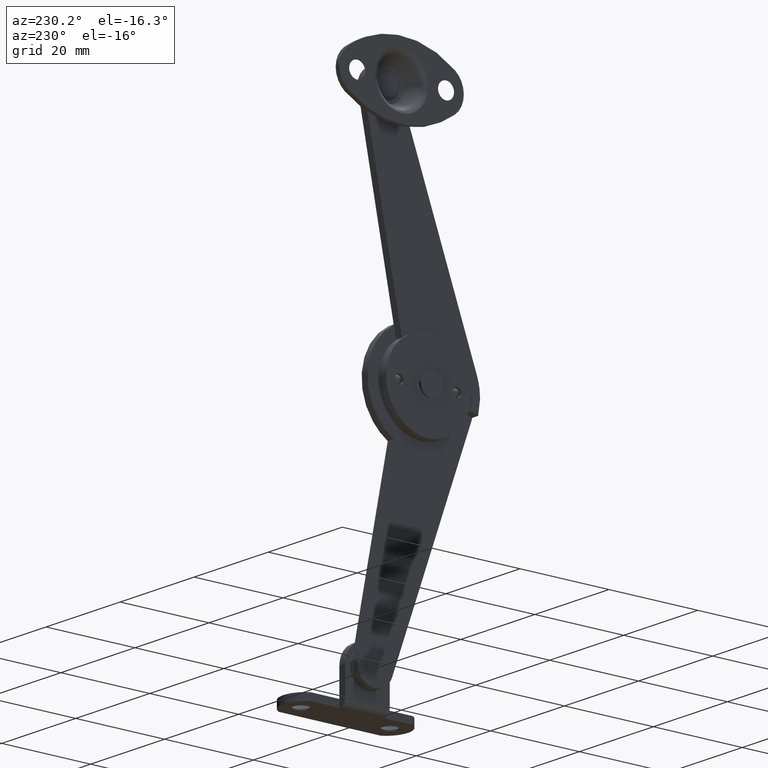
[diagram: clean part render]
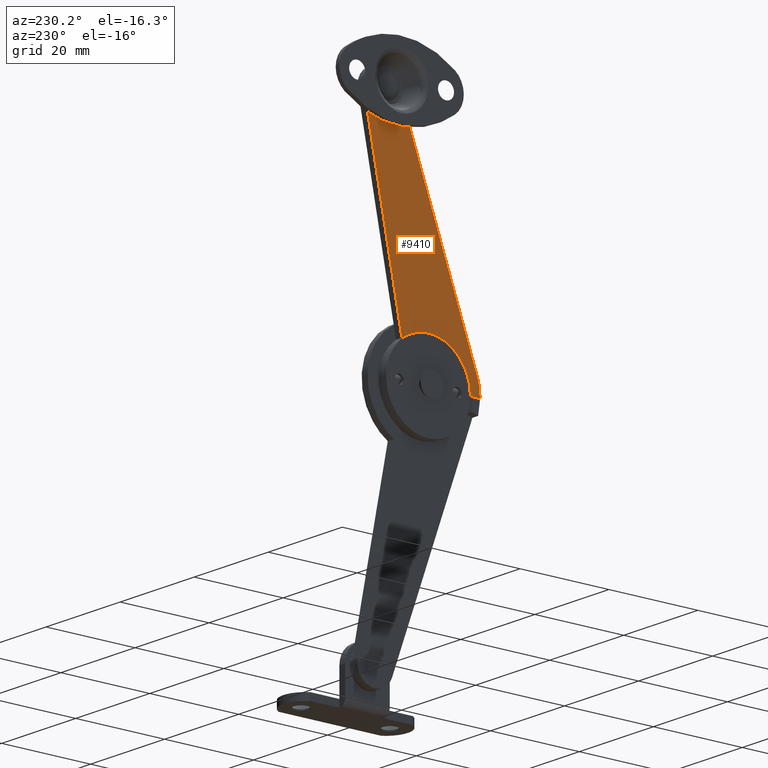
[diagram: same view with one face highlighted and labeled with its STEP entity id]
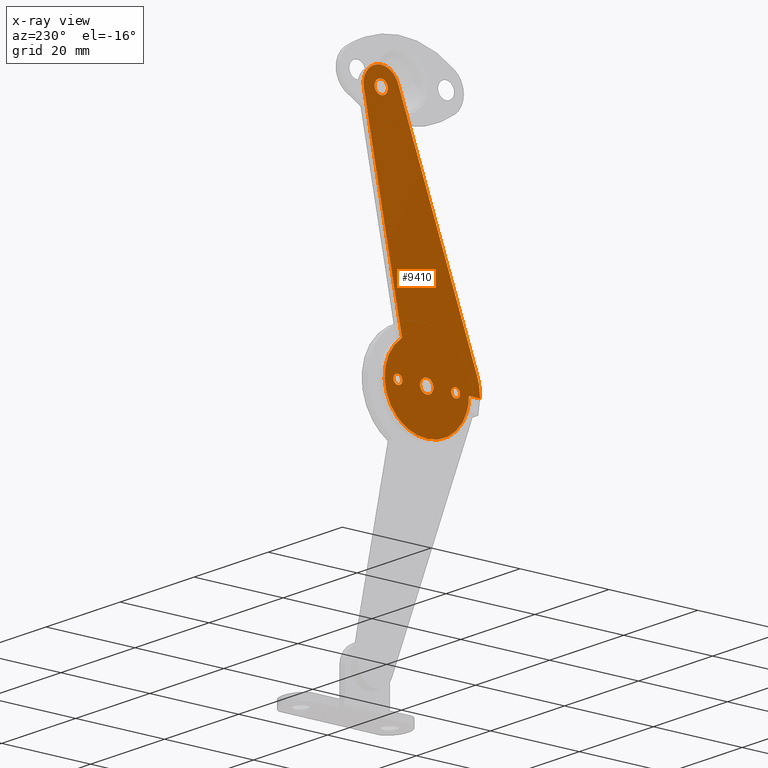
[diagram: x-ray of the same camera — body ghosted, the highlighted face saturated]
A machine part, auxiliary view. The second image highlights one B-rep face of the part: STEP entity #9410.
The next image is the same camera in x-ray: the body ghosted, the highlighted face saturated — about 0% of this face is hidden behind the body in this view.
In plain terms, the highlighted face is a freeform B-spline surface patch.
Its self-contained STEP definition (entity closure, byte-faithful):
#8440=CARTESIAN_POINT('',(5.500000000000000,-16.009696018246672,-0.675590308818836));
#8441=VERTEX_POINT('',#8440);
#8447=CARTESIAN_POINT('',(5.500000000000000,-16.746973262321148,-1.000000000000002));
#8448=VERTEX_POINT('',#8447);
#8449=CARTESIAN_POINT('',(5.500000000000000,-16.009696018246672,-0.675590308818836));
#8450=CARTESIAN_POINT('',(5.500000000000002,-16.079677108283139,-0.752024844862061));
#8451=CARTESIAN_POINT('',(5.499999999999997,-16.298331441183180,-0.926488093229663));
#8452=CARTESIAN_POINT('',(5.500000000000003,-16.574142448422720,-1.000473886124160));
#8453=CARTESIAN_POINT('',(5.500000000000000,-16.746973262321148,-1.000000000000002));
#8454=B_SPLINE_CURVE_WITH_KNOTS('',3,(#8449,#8450,#8451,#8452,#8453),.UNSPECIFIED.,.F.,.U.,(4,1,4),(0.000000092268611,0.310905255472279,0.829054436019731),.UNSPECIFIED.);
#8455=EDGE_CURVE('',#8441,#8448,#8454,.T.);
#8457=CARTESIAN_POINT('',(5.500000000000000,-17.746973262321148,-2.220446E-015));
#8458=VERTEX_POINT('',#8457);
#8459=CARTESIAN_POINT('',(5.500000000000000,-16.746973262321148,-1.000000000000002));
#8460=CARTESIAN_POINT('',(5.500000000000002,-16.869707123204680,-1.000101829417946));
#8461=CARTESIAN_POINT('',(5.500000000000001,-17.098713339564618,-0.957296485600928));
#8462=CARTESIAN_POINT('',(5.500000000000012,-17.370730069922882,-0.798746540256009));
#8463=CARTESIAN_POINT('',(5.499999999999966,-17.586776960491751,-0.571884519672493));
#8464=CARTESIAN_POINT('',(5.500000000000055,-17.718144766908630,-0.302739942389672));
#8465=CARTESIAN_POINT('',(5.499999999999971,-17.746983763447648,-0.089984681377900));
#8466=CARTESIAN_POINT('',(5.500000000000000,-17.746973262321148,-2.220446E-015));
#8467=B_SPLINE_CURVE_WITH_KNOTS('',3,(#8459,#8460,#8461,#8462,#8463,#8464,#8465,#8466),.UNSPECIFIED.,.F.,.U.,(4,1,1,1,1,4),(0.000000280011188,0.368165073058050,0.687270838010319,0.932655415409751,1.300858200873022,1.570835744389358),.UNSPECIFIED.);
#8468=EDGE_CURVE('',#8448,#8458,#8467,.T.);
#8470=CARTESIAN_POINT('',(5.500000000000000,-16.746973262321148,0.999999999999998));
#8471=VERTEX_POINT('',#8470);
#8472=CARTESIAN_POINT('',(5.500000000000000,-17.746973262321148,-2.220446E-015));
#8473=CARTESIAN_POINT('',(5.500000000000008,-17.747026568537120,0.106361743717896));
#8474=CARTESIAN_POINT('',(5.499999999999991,-17.714029779390440,0.310852118097142));
#8475=CARTESIAN_POINT('',(5.500000000000003,-17.561654457827409,0.613806878833723));
#8476=CARTESIAN_POINT('',(5.500000000000004,-17.332154702287738,0.832323559841586));
#8477=CARTESIAN_POINT('',(5.499999999999989,-17.041454909891119,0.969669950028473));
#8478=CARTESIAN_POINT('',(5.500000000000011,-16.853332936210322,1.000062174884905));
#8479=CARTESIAN_POINT('',(5.500000000000000,-16.746973262321148,0.999999999999998));
#8480=B_SPLINE_CURVE_WITH_KNOTS('',3,(#8472,#8473,#8474,#8475,#8476,#8477,#8478,#8479),.UNSPECIFIED.,.F.,.U.,(4,1,1,1,1,4),(0.000000280011996,0.319075622355065,0.613615477763881,1.006309350944507,1.251767417333637,1.570835744389341),.UNSPECIFIED.);
#8481=EDGE_CURVE('',#8458,#8471,#8480,.T.);
#8483=CARTESIAN_POINT('',(5.500000000000000,-16.030322445225650,0.697432151794213));
#8484=VERTEX_POINT('',#8483);
#8485=CARTESIAN_POINT('',(5.500000000000000,-16.746973262321148,0.999999999999998));
#8486=CARTESIAN_POINT('',(5.499999999999996,-16.663745322161859,1.000012408379180));
#8487=CARTESIAN_POINT('',(5.500000000000004,-16.480637389141211,0.977044622406481));
#8488=CARTESIAN_POINT('',(5.500000000000004,-16.232526953624191,0.872285788325939));
#8489=CARTESIAN_POINT('',(5.500000000000003,-16.088360083248588,0.757087475623354));
#8490=CARTESIAN_POINT('',(5.500000000000000,-16.030322445225650,0.697432151794213));
#8491=B_SPLINE_CURVE_WITH_KNOTS('',3,(#8485,#8486,#8487,#8488,#8489,#8490),.UNSPECIFIED.,.F.,.U.,(4,1,1,4),(0.000000076756521,0.249695782042697,0.549313274296900,0.799008979582994),.UNSPECIFIED.);
#8492=EDGE_CURVE('',#8471,#8484,#8491,.T.);
#8527=CARTESIAN_POINT('',(5.500000000000000,-15.746973262321150,-2.220446E-015));
#8528=VERTEX_POINT('',#8527);
#8529=CARTESIAN_POINT('',(5.500000000000000,-16.030322445225650,0.697432151794213));
#8530=CARTESIAN_POINT('',(5.500000000000001,-15.934865154180180,0.599590302169716));
#8531=CARTESIAN_POINT('',(5.500000000000005,-15.794102348497910,0.377801231116102));
#8532=CARTESIAN_POINT('',(5.499999999999995,-15.746882493938390,0.120613673253781));
#8533=CARTESIAN_POINT('',(5.500000000000000,-15.746973262321150,-2.220446E-015));
#8534=B_SPLINE_CURVE_WITH_KNOTS('',3,(#8529,#8530,#8531,#8532,#8533),.UNSPECIFIED.,.F.,.U.,(4,1,4),(0.000000064587626,0.410013834294855,0.771826799784752),.UNSPECIFIED.);
#8535=EDGE_CURVE('',#8484,#8528,#8534,.T.);
#8537=CARTESIAN_POINT('',(5.500000000000000,-15.746973262321150,-2.220446E-015));
#8538=CARTESIAN_POINT('',(5.500000000000006,-15.746888938887940,-0.115918960352683));
#8539=CARTESIAN_POINT('',(5.499999999999987,-15.790477889996181,-0.363104206077933));
#8540=CARTESIAN_POINT('',(5.500000000000015,-15.920829404836880,-0.578836531553304));
#8541=CARTESIAN_POINT('',(5.500000000000000,-16.009696018246672,-0.675590308818836));
#8542=B_SPLINE_CURVE_WITH_KNOTS('',3,(#8537,#8538,#8539,#8540,#8541),.UNSPECIFIED.,.F.,.U.,(4,1,4),(0.000000066372343,0.347731899402147,0.741781672745498),.UNSPECIFIED.);
#8543=EDGE_CURVE('',#8528,#8441,#8542,.T.);
#8631=CARTESIAN_POINT('',(5.500000000000000,-3.009696018246675,-0.675590308818832));
#8632=VERTEX_POINT('',#8631);
#8638=CARTESIAN_POINT('',(5.500000000000000,-3.746973262321150,-0.999999999999998));
#8639=VERTEX_POINT('',#8638);
#8640=CARTESIAN_POINT('',(5.500000000000000,-3.009696018246675,-0.675590308818832));
#8641=CARTESIAN_POINT('',(5.500000000000005,-3.108728992593274,-0.784004016331787));
#8642=CARTESIAN_POINT('',(5.499999999999996,-3.341185292983778,-0.945517768930690));
#8643=CARTESIAN_POINT('',(5.500000000000004,-3.617411719429356,-1.000120975534946));
#8644=CARTESIAN_POINT('',(5.500000000000000,-3.746973262321150,-0.999999999999998));
#8645=B_SPLINE_CURVE_WITH_KNOTS('',3,(#8640,#8641,#8642,#8643,#8644),.UNSPECIFIED.,.F.,.U.,(4,1,4),(0.000000092268255,0.440411460167061,0.829054436019730),.UNSPECIFIED.);
#8646=EDGE_CURVE('',#8632,#8639,#8645,.T.);
#8648=CARTESIAN_POINT('',(5.500000000000000,-4.746973262321151,2.220446E-015));
#8649=VERTEX_POINT('',#8648);
#8650=CARTESIAN_POINT('',(5.500000000000000,-3.746973262321150,-0.999999999999998));
#8651=CARTESIAN_POINT('',(5.500000000000004,-3.877894184913822,-1.000128274260864));
#8652=CARTESIAN_POINT('',(5.500000000000004,-4.090507385693154,-0.957621083420875));
#8653=CARTESIAN_POINT('',(5.499999999999995,-4.334332895854242,-0.819423949661609));
#8654=CARTESIAN_POINT('',(5.500000000000014,-4.517079904026458,-0.653815616414383));
#8655=CARTESIAN_POINT('',(5.499999999999968,-4.691751655788471,-0.392551972975059));
#8656=CARTESIAN_POINT('',(5.500000000000028,-4.747179794574059,-0.147298477784465));
#8657=CARTESIAN_POINT('',(5.500000000000000,-4.746973262321151,2.220446E-015));
#8658=B_SPLINE_CURVE_WITH_KNOTS('',3,(#8650,#8651,#8652,#8653,#8654,#8655,#8656,#8657),.UNSPECIFIED.,.F.,.U.,(4,1,1,1,1,4),(0.000000280012036,0.392710031347957,0.638181018193273,0.834486872022428,1.129035313803002,1.570835744389347),.UNSPECIFIED.);
#8659=EDGE_CURVE('',#8639,#8649,#8658,.T.);
#8661=CARTESIAN_POINT('',(5.500000000000000,-3.746973262321150,1.000000000000002));
#8662=VERTEX_POINT('',#8661);
#8663=CARTESIAN_POINT('',(5.500000000000000,-4.746973262321151,2.220446E-015));
#8664=CARTESIAN_POINT('',(5.499999999999998,-4.747074749941432,0.122733246182287));
#8665=CARTESIAN_POINT('',(5.500000000000005,-4.704271492282392,0.351743959394454));
#8666=CARTESIAN_POINT('',(5.499999999999993,-4.554062398266406,0.609437881308127));
#8667=CARTESIAN_POINT('',(5.500000000000016,-4.362218893945662,0.801270838273734));
#8668=CARTESIAN_POINT('',(5.499999999999959,-4.106867150565904,0.954342294298358));
#8669=CARTESIAN_POINT('',(5.500000000000059,-3.877894813806799,1.000146416390297));
#8670=CARTESIAN_POINT('',(5.500000000000000,-3.746973262321150,1.000000000000002));
#8671=B_SPLINE_CURVE_WITH_KNOTS('',3,(#8663,#8664,#8665,#8666,#8667,#8668,#8669,#8670),.UNSPECIFIED.,.F.,.U.,(4,1,1,1,1,4),(0.000000280012651,0.368165073059368,0.687270838011445,0.883567168157144,1.178126924052127,1.570835744389344),.UNSPECIFIED.);
#8672=EDGE_CURVE('',#8649,#8662,#8671,.T.);
#8674=CARTESIAN_POINT('',(5.500000000000000,-3.030322445225655,0.697432151794217));
#8675=VERTEX_POINT('',#8674);
#8676=CARTESIAN_POINT('',(5.500000000000000,-3.746973262321150,1.000000000000002));
#8677=CARTESIAN_POINT('',(5.499999999999997,-3.647098696171570,1.000035370844298));
#8678=CARTESIAN_POINT('',(5.500000000000012,-3.380762779095270,0.959803972338069));
#8679=CARTESIAN_POINT('',(5.500000000000006,-3.146187515983236,0.817080481621505));
#8680=CARTESIAN_POINT('',(5.500000000000000,-3.030322445225655,0.697432151794217));
#8681=B_SPLINE_CURVE_WITH_KNOTS('',3,(#8676,#8677,#8678,#8679,#8680),.UNSPECIFIED.,.F.,.U.,(4,1,4),(0.000000076756676,0.299637158526728,0.799008979582994),.UNSPECIFIED.);
#8682=EDGE_CURVE('',#8662,#8675,#8681,.T.);
#8717=CARTESIAN_POINT('',(5.500000000000000,-2.746973262321150,2.220446E-015));
#8718=VERTEX_POINT('',#8717);
#8719=CARTESIAN_POINT('',(5.500000000000000,-3.030322445225655,0.697432151794217));
#8720=CARTESIAN_POINT('',(5.499999999999999,-2.951763711991193,0.616813518500459));
#8721=CARTESIAN_POINT('',(5.500000000000001,-2.803890110081365,0.401799078930243));
#8722=CARTESIAN_POINT('',(5.499999999999997,-2.746750843538738,0.144754578875079));
#8723=CARTESIAN_POINT('',(5.500000000000000,-2.746973262321150,2.220446E-015));
#8724=B_SPLINE_CURVE_WITH_KNOTS('',3,(#8719,#8720,#8721,#8722,#8723),.UNSPECIFIED.,.F.,.U.,(4,1,4),(0.000000064587746,0.337681227826698,0.771826799784748),.UNSPECIFIED.);
#8725=EDGE_CURVE('',#8675,#8718,#8724,.T.);
#8727=CARTESIAN_POINT('',(5.500000000000000,-2.746973262321150,2.220446E-015));
#8728=CARTESIAN_POINT('',(5.499999999999999,-2.746889269176804,-0.115919237038842));
#8729=CARTESIAN_POINT('',(5.500000000000004,-2.790477275488396,-0.363103667399964));
#8730=CARTESIAN_POINT('',(5.499999999999999,-2.920829739790762,-0.578836726514581));
#8731=CARTESIAN_POINT('',(5.500000000000000,-3.009696018246675,-0.675590308818832));
#8732=B_SPLINE_CURVE_WITH_KNOTS('',3,(#8727,#8728,#8729,#8730,#8731),.UNSPECIFIED.,.F.,.U.,(4,1,4),(0.000000066372194,0.347731899402069,0.741781672745502),.UNSPECIFIED.);
#8733=EDGE_CURVE('',#8718,#8632,#8732,.T.);
#8822=CARTESIAN_POINT('',(5.500000000000001,1.105916708575994,50.986614336501333));
#8823=VERTEX_POINT('',#8822);
#8829=CARTESIAN_POINT('',(5.500000000000000,0.0,50.500000000001002));
#8830=VERTEX_POINT('',#8829);
#8831=CARTESIAN_POINT('',(5.500000000000001,1.105916708575994,50.986614336501333));
#8832=CARTESIAN_POINT('',(5.499999999999997,0.992217623613326,50.862371907305771));
#8833=CARTESIAN_POINT('',(5.500000000000015,0.774271452221560,50.693240317792963));
#8834=CARTESIAN_POINT('',(5.499999999999989,0.388581972734571,50.535347259267873));
#8835=CARTESIAN_POINT('',(5.500000000000016,0.142498748114620,50.499943726099403));
#8836=CARTESIAN_POINT('',(5.500000000000000,0.0,50.500000000001002));
#8837=B_SPLINE_CURVE_WITH_KNOTS('',3,(#8831,#8832,#8833,#8834,#8835,#8836),.UNSPECIFIED.,.F.,.U.,(4,1,1,4),(0.000000086123614,0.505209564340069,0.816090854595223,1.243582389119931),.UNSPECIFIED.);
#8838=EDGE_CURVE('',#8823,#8830,#8837,.T.);
#8840=CARTESIAN_POINT('',(5.499999999999999,-1.499999999996925,52.000003037285950));
#8841=VERTEX_POINT('',#8840);
#8842=CARTESIAN_POINT('',(5.500000000000000,0.0,50.500000000001002));
#8843=CARTESIAN_POINT('',(5.500000000000002,-0.134984285388195,50.499966860888243));
#8844=CARTESIAN_POINT('',(5.500000000000008,-0.429527960111183,50.539978034267087));
#8845=CARTESIAN_POINT('',(5.499999999999989,-0.802375226699323,50.710756008960843));
#8846=CARTESIAN_POINT('',(5.500000000000014,-1.133064214092411,50.989009428068890));
#8847=CARTESIAN_POINT('',(5.499999999999970,-1.414387801818469,51.398896731232952));
#8848=CARTESIAN_POINT('',(5.500000000000026,-1.500332718864026,51.779056051167210));
#8849=CARTESIAN_POINT('',(5.499999999999999,-1.499999999996925,52.000003037285950));
#8850=B_SPLINE_CURVE_WITH_KNOTS('',3,(#8842,#8843,#8844,#8845,#8846,#8847,#8848,#8849),.UNSPECIFIED.,.F.,.U.,(4,1,1,1,1,4),(0.000000283865871,0.404969462296978,0.883617580101473,1.214902451988867,1.693554854033081,2.356255328463363),.UNSPECIFIED.);
#8851=EDGE_CURVE('',#8830,#8841,#8850,.T.);
#8853=CARTESIAN_POINT('',(5.500000000000000,0.0,53.500000000001002));
#8854=VERTEX_POINT('',#8853);
#8855=CARTESIAN_POINT('',(5.499999999999999,-1.499999999996925,52.000003037285950));
#8856=CARTESIAN_POINT('',(5.500000000000001,-1.500034460399263,52.134988169292399));
#8857=CARTESIAN_POINT('',(5.499999999999993,-1.460018569260274,52.429525701622161));
#8858=CARTESIAN_POINT('',(5.499999999999999,-1.289257227989869,52.802391590126852));
#8859=CARTESIAN_POINT('',(5.500000000000022,-1.034816237270634,53.104690691966091));
#8860=CARTESIAN_POINT('',(5.499999999999972,-0.776612599218439,53.296185239812381));
#8861=CARTESIAN_POINT('',(5.500000000000001,-0.429442940877579,53.455213504057816));
#8862=CARTESIAN_POINT('',(5.500000000000008,-0.171825672261643,53.500125306967362));
#8863=CARTESIAN_POINT('',(5.500000000000000,0.0,53.500000000001002));
#8864=B_SPLINE_CURVE_WITH_KNOTS('',3,(#8855,#8856,#8857,#8858,#8859,#8860,#8861,#8862,#8863),.UNSPECIFIED.,.F.,.U.,(4,1,1,1,1,1,4),(0.000000288012192,0.404968876915910,0.883616298713433,1.214900688058264,1.583094682608181,1.840825606854566,2.356251904649950),.UNSPECIFIED.);
#8865=EDGE_CURVE('',#8841,#8854,#8864,.T.);
#8867=CARTESIAN_POINT('',(5.500000000000002,1.074976033634944,53.046147336654613));
#8868=VERTEX_POINT('',#8867);
#8869=CARTESIAN_POINT('',(5.500000000000000,0.0,53.500000000001002));
#8870=CARTESIAN_POINT('',(5.500000000000004,0.162291426285013,53.500064549098639));
#8871=CARTESIAN_POINT('',(5.499999999999996,0.561788553241001,53.434596150101427));
#8872=CARTESIAN_POINT('',(5.500000000000004,0.909799145674870,53.216521176875972));
#8873=CARTESIAN_POINT('',(5.500000000000002,1.074976033634944,53.046147336654613));
#8874=B_SPLINE_CURVE_WITH_KNOTS('',3,(#8869,#8870,#8871,#8872,#8873),.UNSPECIFIED.,.F.,.U.,(4,1,4),(0.000000071664518,0.486899922328956,1.198513670814954),.UNSPECIFIED.);
#8875=EDGE_CURVE('',#8854,#8868,#8874,.T.);
#8910=CARTESIAN_POINT('',(5.500000000000001,1.499999999996925,51.999996962716040));
#8911=VERTEX_POINT('',#8910);
#8912=CARTESIAN_POINT('',(5.500000000000002,1.074976033634944,53.046147336654613));
#8913=CARTESIAN_POINT('',(5.499999999999998,1.184353671145820,52.933836761269859));
#8914=CARTESIAN_POINT('',(5.500000000000008,1.409746837474557,52.614696676428423));
#8915=CARTESIAN_POINT('',(5.500000000000002,1.500392804003143,52.229211276633173));
#8916=CARTESIAN_POINT('',(5.500000000000001,1.499999999996925,51.999996962716040));
#8917=B_SPLINE_CURVE_WITH_KNOTS('',3,(#8912,#8913,#8914,#8915,#8916),.UNSPECIFIED.,.F.,.U.,(4,1,4),(0.000000060384890,0.470336214402349,1.157742439564161),.UNSPECIFIED.);
#8918=EDGE_CURVE('',#8868,#8911,#8917,.T.);
#8920=CARTESIAN_POINT('',(5.500000000000001,1.499999999996925,51.999996962716040));
#8921=CARTESIAN_POINT('',(5.500000000000019,1.500547187156289,51.756476177460783));
#8922=CARTESIAN_POINT('',(5.499999999999966,1.407636969193402,51.386150121902403));
#8923=CARTESIAN_POINT('',(5.500000000000020,1.192053786493937,51.080597480285867));
#8924=CARTESIAN_POINT('',(5.500000000000001,1.105916708575994,50.986614336501333));
#8925=B_SPLINE_CURVE_WITH_KNOTS('',3,(#8920,#8921,#8922,#8923,#8924),.UNSPECIFIED.,.F.,.U.,(4,1,4),(0.000000063144740,0.730185714755346,1.112669330625376),.UNSPECIFIED.);
#8926=EDGE_CURVE('',#8911,#8823,#8925,.T.);
#9017=CARTESIAN_POINT('',(5.500000000000000,-9.141056553745147,-1.013385663499660));
#9018=VERTEX_POINT('',#9017);
#9024=CARTESIAN_POINT('',(5.500000000000000,-10.246973262321140,-1.499999999999998));
#9025=VERTEX_POINT('',#9024);
#9026=CARTESIAN_POINT('',(5.500000000000000,-9.141056553745147,-1.013385663499660));
#9027=CARTESIAN_POINT('',(5.499999999999994,-9.272208613969928,-1.156795595304713));
#9028=CARTESIAN_POINT('',(5.500000000000025,-9.612532733660636,-1.406938344908132));
#9029=CARTESIAN_POINT('',(5.499999999999985,-10.026711180810560,-1.500333291413499));
#9030=CARTESIAN_POINT('',(5.500000000000000,-10.246973262321140,-1.499999999999998));
#9031=B_SPLINE_CURVE_WITH_KNOTS('',3,(#9026,#9027,#9028,#9029,#9030),.UNSPECIFIED.,.F.,.U.,(4,1,4),(0.000000086123823,0.582950317205485,1.243582389119931),.UNSPECIFIED.);
#9032=EDGE_CURVE('',#9018,#9025,#9031,.T.);
#9034=CARTESIAN_POINT('',(5.499999999999999,-11.746973262318059,0.000003037284961));
#9035=VERTEX_POINT('',#9034);
#9036=CARTESIAN_POINT('',(5.500000000000000,-10.246973262321140,-1.499999999999998));
#9037=CARTESIAN_POINT('',(5.500000000000003,-10.467934543212481,-1.500347901674440));
#9038=CARTESIAN_POINT('',(5.499999999999996,-10.823503389180001,-1.419895687693361));
#9039=CARTESIAN_POINT('',(5.500000000000013,-11.207544767958961,-1.169941966007040));
#9040=CARTESIAN_POINT('',(5.499999999999968,-11.445593317517870,-0.919869699579572));
#9041=CARTESIAN_POINT('',(5.500000000000078,-11.672448082187641,-0.552004709833400));
#9042=CARTESIAN_POINT('',(5.499999999999917,-11.747281673951210,-0.220956619499783));
#9043=CARTESIAN_POINT('',(5.499999999999999,-11.746973262318059,0.000003037284961));
#9044=B_SPLINE_CURVE_WITH_KNOTS('',3,(#9036,#9037,#9038,#9039,#9040,#9041,#9042,#9043),.UNSPECIFIED.,.F.,.U.,(4,1,1,1,1,4),(0.000000283865044,0.662700760031224,1.067679616822650,1.362179204002087,1.693554854032483,2.356255328463375),.UNSPECIFIED.);
#9045=EDGE_CURVE('',#9025,#9035,#9044,.T.);
#9047=CARTESIAN_POINT('',(5.500000000000000,-10.246973262321140,1.500000000000002));
#9048=VERTEX_POINT('',#9047);
#9049=CARTESIAN_POINT('',(5.499999999999999,-11.746973262318059,0.000003037284961));
#9050=CARTESIAN_POINT('',(5.499999999999989,-11.747303861785310,0.220948334817128));
#9051=CARTESIAN_POINT('',(5.500000000000023,-11.661363718258730,0.601109340619256));
#9052=CARTESIAN_POINT('',(5.499999999999975,-11.373001537623100,1.021252815548210));
#9053=CARTESIAN_POINT('',(5.500000000000057,-11.048005111395421,1.287935636152848));
#9054=CARTESIAN_POINT('',(5.499999999999852,-10.676456023671520,1.458108413450636));
#9055=CARTESIAN_POINT('',(5.500000000000158,-10.394240535595790,1.500053692440572));
#9056=CARTESIAN_POINT('',(5.500000000000000,-10.246973262321140,1.500000000000002));
#9057=B_SPLINE_CURVE_WITH_KNOTS('',3,(#9049,#9050,#9051,#9052,#9053,#9054,#9055,#9056),.UNSPECIFIED.,.F.,.U.,(4,1,1,1,1,4),(0.000000288016019,0.662699800321878,1.141351506788639,1.509469417795485,1.914459849586190,2.356251904649897),.UNSPECIFIED.);
#9058=EDGE_CURVE('',#9035,#9048,#9057,.T.);
#9060=CARTESIAN_POINT('',(5.500000000000000,-9.171997228686198,1.046147336653628));
#9061=VERTEX_POINT('',#9060);
#9062=CARTESIAN_POINT('',(5.500000000000000,-10.246973262321140,1.500000000000002));
#9063=CARTESIAN_POINT('',(5.499999999999995,-10.009674634493420,1.500450292210523));
#9064=CARTESIAN_POINT('',(5.500000000000018,-9.610678126642636,1.403138945325387));
#9065=CARTESIAN_POINT('',(5.499999999999986,-9.285137989693158,1.162498884729421));
#9066=CARTESIAN_POINT('',(5.500000000000000,-9.171997228686198,1.046147336653628));
#9067=B_SPLINE_CURVE_WITH_KNOTS('',3,(#9062,#9063,#9064,#9065,#9066),.UNSPECIFIED.,.F.,.U.,(4,1,4),(0.000000071664438,0.711613820294272,1.198513670814960),.UNSPECIFIED.);
#9068=EDGE_CURVE('',#9048,#9061,#9067,.T.);
#9103=CARTESIAN_POINT('',(5.500000000000000,-8.746973262324215,-0.000003037284955));
#9104=VERTEX_POINT('',#9103);
#9105=CARTESIAN_POINT('',(5.500000000000000,-9.171997228686198,1.046147336653628));
#9106=CARTESIAN_POINT('',(5.500000000000000,-9.062619566747538,0.933835940914525));
#9107=CARTESIAN_POINT('',(5.500000000000001,-8.837226558034510,0.614697761554244));
#9108=CARTESIAN_POINT('',(5.500000000000005,-8.746580273450196,0.229211045640326));
#9109=CARTESIAN_POINT('',(5.500000000000000,-8.746973262324215,-0.000003037284955));
#9110=B_SPLINE_CURVE_WITH_KNOTS('',3,(#9105,#9106,#9107,#9108,#9109),.UNSPECIFIED.,.F.,.U.,(4,1,4),(0.000000060385510,0.470336214402706,1.157742439564171),.UNSPECIFIED.);
#9111=EDGE_CURVE('',#9061,#9104,#9110,.T.);
#9113=CARTESIAN_POINT('',(5.500000000000000,-8.746973262324215,-0.000003037284955));
#9114=CARTESIAN_POINT('',(5.499999999999995,-8.746770717077531,-0.197057646333228));
#9115=CARTESIAN_POINT('',(5.500000000000012,-8.821182273043688,-0.567749084333357));
#9116=CARTESIAN_POINT('',(5.499999999999997,-9.023498895152059,-0.885277717965652));
#9117=CARTESIAN_POINT('',(5.500000000000000,-9.141056553745147,-1.013385663499660));
#9118=B_SPLINE_CURVE_WITH_KNOTS('',3,(#9113,#9114,#9115,#9116,#9117),.UNSPECIFIED.,.F.,.U.,(4,1,4),(0.000000063143345,0.591085767472389,1.112669330625376),.UNSPECIFIED.);
#9119=EDGE_CURVE('',#9104,#9018,#9118,.T.);
#9272=CARTESIAN_POINT('',(5.500000000000090,5.310998484213711,-12.771515638312440));
#9273=CARTESIAN_POINT('',(5.500000000000090,-23.558008432553201,-12.771515638312440));
#9274=CARTESIAN_POINT('',(5.500000000000090,5.310998484213711,59.270744605005113));
#9275=CARTESIAN_POINT('',(5.500000000000090,-23.558008432553201,59.270744605005113));
#9276=B_SPLINE_SURFACE_WITH_KNOTS('',1,1,((#9272,#9274),(#9273,#9275)),.UNSPECIFIED.,.F.,.F.,.U.,(2,2),(2,2),(0.0,28.869006916766910),(0.0,72.042260243317557),.UNSPECIFIED.);
#9277=CARTESIAN_POINT('',(5.500000000000000,-4.656469198437160,7.680902571423180));
#9278=VERTEX_POINT('',#9277);
#9279=CARTESIAN_POINT('',(5.500000000000000,3.924536278575150,51.226640100628487));
#9280=VERTEX_POINT('',#9279);
#9281=CARTESIAN_POINT('',(5.500000000000000,-4.656469198437160,7.680902571423180));
#9282=CARTESIAN_POINT('',(5.500000000000000,3.924536278575150,51.226640100628487));
#9283=QUASI_UNIFORM_CURVE('',1,(#9281,#9282),.UNSPECIFIED.,.F.,.U.);
#9284=EDGE_CURVE('',#9278,#9280,#9283,.T.);
#9285=ORIENTED_EDGE('',*,*,#9284,.F.);
#9286=CARTESIAN_POINT('',(5.499999999999999,-5.937671783386525,-8.466399515948522));
#9287=VERTEX_POINT('',#9286);
#9288=CARTESIAN_POINT('',(5.500000000000000,-4.656469198437160,7.680902571423180));
#9289=CARTESIAN_POINT('',(5.499999999999973,-4.084651011807093,7.264896602368970));
#9290=CARTESIAN_POINT('',(5.500000000000036,-3.241013601519640,6.492950154691396));
#9291=CARTESIAN_POINT('',(5.500000000000007,-2.152566395951574,5.062843758287658));
#9292=CARTESIAN_POINT('',(5.499999999999998,-1.462015713054158,3.733485678847794));
#9293=CARTESIAN_POINT('',(5.500000000000020,-1.004372364598724,2.312279258143140));
#9294=CARTESIAN_POINT('',(5.500000000000053,-0.750535232746580,0.917676430678448));
#9295=CARTESIAN_POINT('',(5.499999999999806,-0.721408964953625,-0.502189237663793));
#9296=CARTESIAN_POINT('',(5.500000000000116,-0.936008836471562,-2.081933048648359));
#9297=CARTESIAN_POINT('',(5.499999999999976,-1.407228399484166,-3.635720847857526));
#9298=CARTESIAN_POINT('',(5.499999999999999,-2.272166385233409,-5.273395056394688));
#9299=CARTESIAN_POINT('',(5.499999999999996,-3.375103661798826,-6.633681552683249));
#9300=CARTESIAN_POINT('',(5.500000000000002,-4.623929922219357,-7.707113943968851));
#9301=CARTESIAN_POINT('',(5.499999999999996,-5.487536552884308,-8.237318733680768));
#9302=CARTESIAN_POINT('',(5.499999999999999,-5.937671783386525,-8.466399515948522));
#9303=B_SPLINE_CURVE_WITH_KNOTS('',3,(#9288,#9289,#9290,#9291,#9292,#9293,#9294,#9295,#9296,#9297,#9298,#9299,#9300,#9301,#9302),.UNSPECIFIED.,.F.,.U.,(4,1,1,1,1,1,1,1,1,1,1,1,4),(0.000000156761537,2.121357668736543,3.409327073358714,5.379178993446605,6.591412417111384,7.879395379607942,9.621969746225933,10.834074916220420,12.652411353417040,14.470746073259971,16.364844842030461,17.880121771183092,19.395343708183489),.UNSPECIFIED.);
#9304=EDGE_CURVE('',#9278,#9287,#9303,.T.);
#9305=ORIENTED_EDGE('',*,*,#9304,.T.);
#9306=CARTESIAN_POINT('',(5.500000000000000,-19.746973262321148,0.0));
#9307=VERTEX_POINT('',#9306);
#9308=CARTESIAN_POINT('',(5.499999999999999,-5.937671783386525,-8.466399515948522));
#9309=CARTESIAN_POINT('',(5.499999999999987,-6.792772649472320,-8.902132361490166));
#9310=CARTESIAN_POINT('',(5.500000000000027,-8.151128555648548,-9.350480565864237));
#9311=CARTESIAN_POINT('',(5.499999999999986,-10.117019030359890,-9.539590850383560));
#9312=CARTESIAN_POINT('',(5.500000000000011,-11.685666573187460,-9.439882375615060));
#9313=CARTESIAN_POINT('',(5.500000000000023,-13.237431192143340,-9.061811780813521));
#9314=CARTESIAN_POINT('',(5.500000000000003,-14.588991001683830,-8.486433410271800));
#9315=CARTESIAN_POINT('',(5.500000000000096,-15.713838002498269,-7.802945739616258));
#9316=CARTESIAN_POINT('',(5.499999999999939,-16.798189393764240,-6.930408458818000));
#9317=CARTESIAN_POINT('',(5.499999999999931,-17.928593793754700,-5.696748932093536));
#9318=CARTESIAN_POINT('',(5.500000000000460,-18.872893340680498,-4.129593444917915));
#9319=CARTESIAN_POINT('',(5.499999999999063,-19.571842687211230,-2.171759573985305));
#9320=CARTESIAN_POINT('',(5.500000000000679,-19.747214712771179,-0.808158607518805));
#9321=CARTESIAN_POINT('',(5.500000000000000,-19.746973262321148,0.0));
#9322=B_SPLINE_CURVE_WITH_KNOTS('',3,(#9308,#9309,#9310,#9311,#9312,#9313,#9314,#9315,#9316,#9317,#9318,#9319,#9320,#9321),.UNSPECIFIED.,.F.,.U.,(4,1,1,1,1,1,1,1,1,1,1,4),(0.000000156827639,2.878969226174817,4.242729994087719,5.909530246744476,7.576342603880477,9.015814209989779,10.303718137147939,11.515953144163410,13.182768601936660,15.304136416999761,16.970924696439319,19.395336818258659),.UNSPECIFIED.);
#9323=EDGE_CURVE('',#9287,#9307,#9322,.T.);
#9324=ORIENTED_EDGE('',*,*,#9323,.T.);
#9325=CARTESIAN_POINT('',(5.500000000000000,-22.246973262321148,4.158241E-015));
#9326=VERTEX_POINT('',#9325);
#9327=CARTESIAN_POINT('',(5.500000000000000,-22.246973262321148,4.158241E-015));
#9328=CARTESIAN_POINT('',(5.500000000000000,-19.746973262321148,0.0));
#9329=QUASI_UNIFORM_CURVE('',1,(#9327,#9328),.UNSPECIFIED.,.F.,.U.);
#9330=EDGE_CURVE('',#9326,#9307,#9329,.T.);
#9331=ORIENTED_EDGE('',*,*,#9330,.F.);
#9332=CARTESIAN_POINT('',(5.500000000000000,-21.535477266283451,4.070635878387406));
#9333=VERTEX_POINT('',#9332);
#9334=CARTESIAN_POINT('',(5.500000000000000,-22.246973262321148,4.158241E-015));
#9335=CARTESIAN_POINT('',(5.499999999999996,-22.246979176061249,0.475867317917176));
#9336=CARTESIAN_POINT('',(5.500000000000014,-22.164588269159800,1.860230492990024));
#9337=CARTESIAN_POINT('',(5.499999999999986,-21.843844059331751,3.216069265816258));
#9338=CARTESIAN_POINT('',(5.500000000000000,-21.535477266283451,4.070635878387406));
#9339=B_SPLINE_CURVE_WITH_KNOTS('',3,(#9334,#9335,#9336,#9337,#9338),.UNSPECIFIED.,.F.,.U.,(4,1,4),(5.057418E-009,1.427617030541497,4.153065065013974),.UNSPECIFIED.);
#9340=EDGE_CURVE('',#9326,#9333,#9339,.T.);
#9341=ORIENTED_EDGE('',*,*,#9340,.T.);
#9342=CARTESIAN_POINT('',(5.500000000000000,-3.762837121346930,53.356885828514500));
#9343=VERTEX_POINT('',#9342);
#9344=CARTESIAN_POINT('',(5.500000000000000,-3.762837121346930,53.356885828514500));
#9345=CARTESIAN_POINT('',(5.500000000000000,-21.535477266283451,4.070635878387406));
#9346=QUASI_UNIFORM_CURVE('',1,(#9344,#9345),.UNSPECIFIED.,.F.,.U.);
#9347=EDGE_CURVE('',#9343,#9333,#9346,.T.);
#9348=ORIENTED_EDGE('',*,*,#9347,.F.);
#9349=CARTESIAN_POINT('',(5.500000000000000,1.068189428812523,55.854748607130993));
#9350=VERTEX_POINT('',#9349);
#9351=CARTESIAN_POINT('',(5.500000000000000,-3.762837121346930,53.356885828514500));
#9352=CARTESIAN_POINT('',(5.500000000000004,-3.609879757843755,53.781866334041347));
#9353=CARTESIAN_POINT('',(5.500000000000004,-3.251309286073311,54.413863791308430));
#9354=CARTESIAN_POINT('',(5.499999999999992,-2.532854741740101,55.134080079292197));
#9355=CARTESIAN_POINT('',(5.500000000000006,-1.889150326270239,55.552564142524709));
#9356=CARTESIAN_POINT('',(5.499999999999996,-1.152309669208796,55.855095213597728));
#9357=CARTESIAN_POINT('',(5.500000000000004,-0.185337630984783,56.053971287578307));
#9358=CARTESIAN_POINT('',(5.500000000000001,0.602997560424693,55.984085425432937));
#9359=CARTESIAN_POINT('',(5.500000000000000,1.068189428812523,55.854748607130993));
#9360=B_SPLINE_CURVE_WITH_KNOTS('',3,(#9351,#9352,#9353,#9354,#9355,#9356,#9357,#9358,#9359),.UNSPECIFIED.,.F.,.U.,(4,1,1,1,1,1,4),(0.000000133103404,1.354885829071431,2.149152283301071,3.036771986689065,3.644157901272140,4.531865353515443,5.980193256315761),.UNSPECIFIED.);
#9361=EDGE_CURVE('',#9343,#9350,#9360,.T.);
#9362=ORIENTED_EDGE('',*,*,#9361,.T.);
#9363=CARTESIAN_POINT('',(5.500000000000000,1.068189428812523,55.854748607130993));
#9364=CARTESIAN_POINT('',(5.500000000000005,1.278289649716834,55.796526991211010));
#9365=CARTESIAN_POINT('',(5.500000000000000,1.821012138532385,55.597222459738859));
#9366=CARTESIAN_POINT('',(5.499999999999989,2.536276601080266,55.140663226023698));
#9367=CARTESIAN_POINT('',(5.500000000000021,3.123916719229425,54.533258922763721));
#9368=CARTESIAN_POINT('',(5.499999999999993,3.531282563050236,53.922216494529039));
#9369=CARTESIAN_POINT('',(5.500000000000006,3.851363096486114,53.191530184899243));
#9370=CARTESIAN_POINT('',(5.499999999999945,4.035359748537275,52.268238450185208));
#9371=CARTESIAN_POINT('',(5.500000000000073,3.993905854540462,51.578054876823018));
#9372=CARTESIAN_POINT('',(5.500000000000000,3.924536278575150,51.226640100628487));
#9373=B_SPLINE_CURVE_WITH_KNOTS('',3,(#9363,#9364,#9365,#9366,#9367,#9368,#9369,#9370,#9371,#9372),.UNSPECIFIED.,.F.,.U.,(4,1,1,1,1,1,1,4),(0.000000133105048,0.654067859468346,1.728649258893915,2.522916853401053,3.176960730583437,3.924482259644276,4.905629182490943,5.980189455979564),.UNSPECIFIED.);
#9374=EDGE_CURVE('',#9350,#9280,#9373,.T.);
#9375=ORIENTED_EDGE('',*,*,#9374,.T.);
#9376=EDGE_LOOP('',(#9285,#9305,#9324,#9331,#9341,#9348,#9362,#9375));
#9377=FACE_OUTER_BOUND('',#9376,.T.);
#9378=ORIENTED_EDGE('',*,*,#8659,.F.);
#9379=ORIENTED_EDGE('',*,*,#8646,.F.);
#9380=ORIENTED_EDGE('',*,*,#8733,.F.);
#9381=ORIENTED_EDGE('',*,*,#8725,.F.);
#9382=ORIENTED_EDGE('',*,*,#8682,.F.);
#9383=ORIENTED_EDGE('',*,*,#8672,.F.);
#9384=EDGE_LOOP('',(#9378,#9379,#9380,#9381,#9382,#9383));
#9385=FACE_BOUND('',#9384,.T.);
#9386=ORIENTED_EDGE('',*,*,#8851,.F.);
#9387=ORIENTED_EDGE('',*,*,#8838,.F.);
#9388=ORIENTED_EDGE('',*,*,#8926,.F.);
#9389=ORIENTED_EDGE('',*,*,#8918,.F.);
#9390=ORIENTED_EDGE('',*,*,#8875,.F.);
#9391=ORIENTED_EDGE('',*,*,#8865,.F.);
#9392=EDGE_LOOP('',(#9386,#9387,#9388,#9389,#9390,#9391));
#9393=FACE_BOUND('',#9392,.T.);
#9394=ORIENTED_EDGE('',*,*,#9045,.F.);
#9395=ORIENTED_EDGE('',*,*,#9032,.F.);
#9396=ORIENTED_EDGE('',*,*,#9119,.F.);
#9397=ORIENTED_EDGE('',*,*,#9111,.F.);
#9398=ORIENTED_EDGE('',*,*,#9068,.F.);
#9399=ORIENTED_EDGE('',*,*,#9058,.F.);
#9400=EDGE_LOOP('',(#9394,#9395,#9396,#9397,#9398,#9399));
#9401=FACE_BOUND('',#9400,.T.);
#9402=ORIENTED_EDGE('',*,*,#8468,.F.);
#9403=ORIENTED_EDGE('',*,*,#8455,.F.);
#9404=ORIENTED_EDGE('',*,*,#8543,.F.);
#9405=ORIENTED_EDGE('',*,*,#8535,.F.);
#9406=ORIENTED_EDGE('',*,*,#8492,.F.);
#9407=ORIENTED_EDGE('',*,*,#8481,.F.);
#9408=EDGE_LOOP('',(#9402,#9403,#9404,#9405,#9406,#9407));
#9409=FACE_BOUND('',#9408,.T.);
#9410=ADVANCED_FACE('',(#9377,#9385,#9393,#9401,#9409),#9276,.T.);